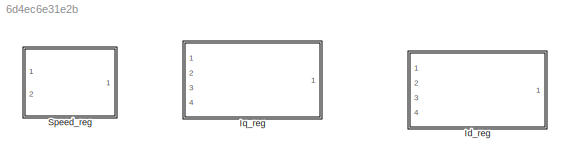
MODEL slx_6d4ec6e31e2b
KIND model
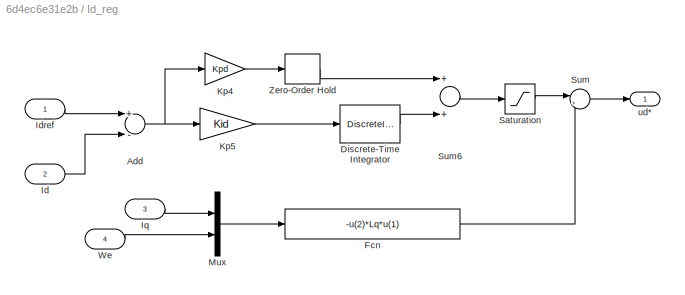
BLOCK [SubSystem] Id_reg
  Ports = [4, 1]
  RequestExecContextInheritance = off
BLOCK [Sum] Id_reg/Add
  InputSameDT = off
  Inputs = +-
  OutDataTypeStr = Inherit: Inherit via internal rule
  Ports = [2, 1]
  SaturateOnIntegerOverflow = off
BLOCK [DiscreteIntegrator] Id_reg/Discrete-Time Integrator
  InitialCondition = Init
  LowerSaturationLimit = LowerLimit
  Ports = [1, 1]
  SampleTime = Ts
  UpperSaturationLimit = UpperLimit
BLOCK [Fcn] Id_reg/Fcn
  Expr = -u(2)*Lq*u(1)
BLOCK [Inport] Id_reg/Id
  IconDisplay = Port number
  Port = 2
BLOCK [Inport] Id_reg/Idref
  IconDisplay = Port number
BLOCK [Inport] Id_reg/Iq
  IconDisplay = Port number
  Port = 3
BLOCK [Gain] Id_reg/Kp4
  Gain = Kpd
  SampleTime = Ts
BLOCK [Gain] Id_reg/Kp5
  Gain = Kid
  SampleTime = Ts
BLOCK [Mux] Id_reg/Mux
  DisplayOption = bar
  Inputs = 2
  Ports = [2, 1]
BLOCK [Saturate] Id_reg/Saturation
  InputPortMap = u0
  Ports = [1, 1]
BLOCK [Sum] Id_reg/Sum
  IconShape = round
  InputSameDT = off
  Inputs = |++
  OutDataTypeStr = Inherit: Inherit via internal rule
  Ports = [2, 1]
  SaturateOnIntegerOverflow = off
BLOCK [Sum] Id_reg/Sum6
  Ports = [2, 1]
  SampleTime = Ts
BLOCK [Inport] Id_reg/We
  IconDisplay = Port number
  Port = 4
BLOCK [ZeroOrderHold] Id_reg/Zero-Order Hold
  SampleTime = Ts
BLOCK [Outport] Id_reg/ud*
  IconDisplay = Port number
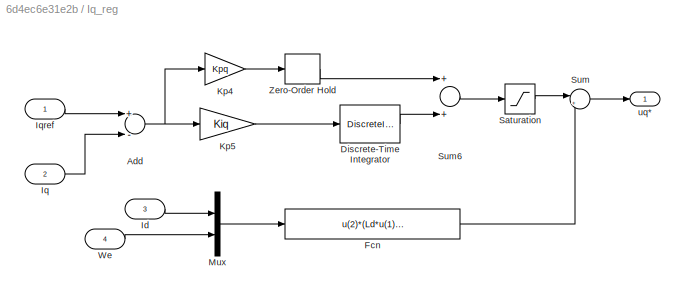
BLOCK [SubSystem] Iq_reg
  Ports = [4, 1]
  RequestExecContextInheritance = off
BLOCK [Sum] Iq_reg/Add
  InputSameDT = off
  Inputs = +-
  OutDataTypeStr = Inherit: Inherit via internal rule
  Ports = [2, 1]
  SaturateOnIntegerOverflow = off
BLOCK [DiscreteIntegrator] Iq_reg/Discrete-Time Integrator
  InitialCondition = Init
  LowerSaturationLimit = LowerLimit
  Ports = [1, 1]
  SampleTime = Ts
  UpperSaturationLimit = UpperLimit
BLOCK [Fcn] Iq_reg/Fcn
  Expr = u(2)*(Ld*u(1)+flux)
BLOCK [Inport] Iq_reg/Id
  IconDisplay = Port number
  Port = 3
BLOCK [Inport] Iq_reg/Iq
  IconDisplay = Port number
  Port = 2
BLOCK [Inport] Iq_reg/Iqref
  IconDisplay = Port number
BLOCK [Gain] Iq_reg/Kp4
  Gain = Kpq
  SampleTime = Ts
BLOCK [Gain] Iq_reg/Kp5
  Gain = Kiq
  SampleTime = Ts
BLOCK [Mux] Iq_reg/Mux
  DisplayOption = bar
  Inputs = 2
  Ports = [2, 1]
BLOCK [Saturate] Iq_reg/Saturation
  InputPortMap = u0
  Ports = [1, 1]
BLOCK [Sum] Iq_reg/Sum
  IconShape = round
  InputSameDT = off
  Inputs = |++
  OutDataTypeStr = Inherit: Inherit via internal rule
  Ports = [2, 1]
  SaturateOnIntegerOverflow = off
BLOCK [Sum] Iq_reg/Sum6
  Ports = [2, 1]
  SampleTime = Ts
BLOCK [Inport] Iq_reg/We
  IconDisplay = Port number
  Port = 4
BLOCK [ZeroOrderHold] Iq_reg/Zero-Order Hold
  SampleTime = Ts
BLOCK [Outport] Iq_reg/uq*
  IconDisplay = Port number
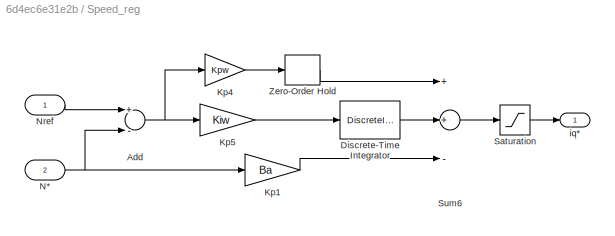
BLOCK [SubSystem] Speed_reg
  Ports = [2, 1]
  RequestExecContextInheritance = off
BLOCK [Sum] Speed_reg/Add
  InputSameDT = off
  Inputs = +-
  OutDataTypeStr = Inherit: Inherit via internal rule
  Ports = [2, 1]
  SaturateOnIntegerOverflow = off
BLOCK [DiscreteIntegrator] Speed_reg/Discrete-Time Integrator
  InitialCondition = Init
  LowerSaturationLimit = LowerLimit
  Ports = [1, 1]
  SampleTime = Ts
  UpperSaturationLimit = UpperLimit
BLOCK [Gain] Speed_reg/Kp1
  Gain = Ba
  SampleTime = Ts
BLOCK [Gain] Speed_reg/Kp4
  Gain = Kpw
  SampleTime = Ts
BLOCK [Gain] Speed_reg/Kp5
  Gain = Kiw
  SampleTime = Ts
BLOCK [Inport] Speed_reg/N*
  IconDisplay = Port number
  Port = 2
BLOCK [Inport] Speed_reg/Nref
  IconDisplay = Port number
BLOCK [Saturate] Speed_reg/Saturation
  InputPortMap = u0
  Ports = [1, 1]
BLOCK [Sum] Speed_reg/Sum6
  Inputs = ++-
  Ports = [3, 1]
  SampleTime = Ts
BLOCK [ZeroOrderHold] Speed_reg/Zero-Order Hold
  SampleTime = Ts
BLOCK [Outport] Speed_reg/iq*
  IconDisplay = Port number
NET Id_reg/Add:1 -> Id_reg/Kp4:1, Id_reg/Kp5:1
LINE Id_reg/Discrete-Time Integrator:1 -> Id_reg/Sum6:2
LINE Id_reg/Fcn:1 -> Id_reg/Sum:2
LINE Id_reg/Id:1 -> Id_reg/Add:2
LINE Id_reg/Idref:1 -> Id_reg/Add:1
LINE Id_reg/Iq:1 -> Id_reg/Mux:1
LINE Id_reg/Kp4:1 -> Id_reg/Zero-Order Hold:1
LINE Id_reg/Kp5:1 -> Id_reg/Discrete-Time Integrator:1
LINE Id_reg/Mux:1 -> Id_reg/Fcn:1
LINE Id_reg/Saturation:1 -> Id_reg/Sum:1
LINE Id_reg/Sum6:1 -> Id_reg/Saturation:1
LINE Id_reg/Sum:1 -> Id_reg/ud*:1
LINE Id_reg/We:1 -> Id_reg/Mux:2
LINE Id_reg/Zero-Order Hold:1 -> Id_reg/Sum6:1
NET Iq_reg/Add:1 -> Iq_reg/Kp4:1, Iq_reg/Kp5:1
LINE Iq_reg/Discrete-Time Integrator:1 -> Iq_reg/Sum6:2
LINE Iq_reg/Fcn:1 -> Iq_reg/Sum:2
LINE Iq_reg/Id:1 -> Iq_reg/Mux:1
LINE Iq_reg/Iq:1 -> Iq_reg/Add:2
LINE Iq_reg/Iqref:1 -> Iq_reg/Add:1
LINE Iq_reg/Kp4:1 -> Iq_reg/Zero-Order Hold:1
LINE Iq_reg/Kp5:1 -> Iq_reg/Discrete-Time Integrator:1
LINE Iq_reg/Mux:1 -> Iq_reg/Fcn:1
LINE Iq_reg/Saturation:1 -> Iq_reg/Sum:1
LINE Iq_reg/Sum6:1 -> Iq_reg/Saturation:1
LINE Iq_reg/Sum:1 -> Iq_reg/uq*:1
LINE Iq_reg/We:1 -> Iq_reg/Mux:2
LINE Iq_reg/Zero-Order Hold:1 -> Iq_reg/Sum6:1
NET Speed_reg/Add:1 -> Speed_reg/Kp4:1, Speed_reg/Kp5:1
LINE Speed_reg/Discrete-Time Integrator:1 -> Speed_reg/Sum6:2
LINE Speed_reg/Kp1:1 -> Speed_reg/Sum6:3
LINE Speed_reg/Kp4:1 -> Speed_reg/Zero-Order Hold:1
LINE Speed_reg/Kp5:1 -> Speed_reg/Discrete-Time Integrator:1
NET Speed_reg/N*:1 -> Speed_reg/Add:2, Speed_reg/Kp1:1
LINE Speed_reg/Nref:1 -> Speed_reg/Add:1
LINE Speed_reg/Saturation:1 -> Speed_reg/iq*:1
LINE Speed_reg/Sum6:1 -> Speed_reg/Saturation:1
LINE Speed_reg/Zero-Order Hold:1 -> Speed_reg/Sum6:1
note: NET lines group one-source signal fan-out (src -> all destinations, sorted); 1:1 wires keep LINE
